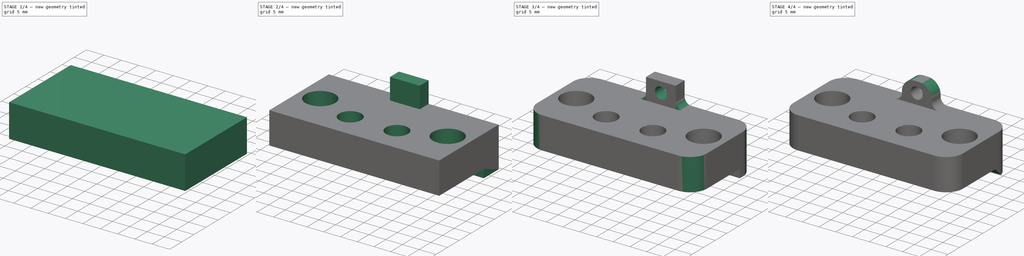
[diagram: build sequence overview — one tinted view per stage of 4, left to right]
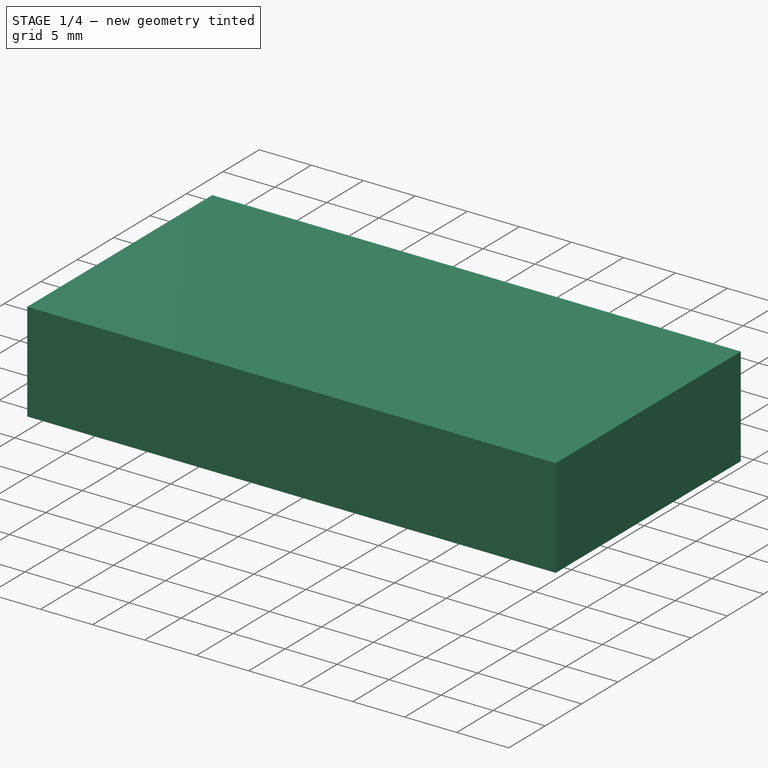
[diagram: stage 1 of 4 — iso view after this stage's code; geometry added in this stage tinted green]
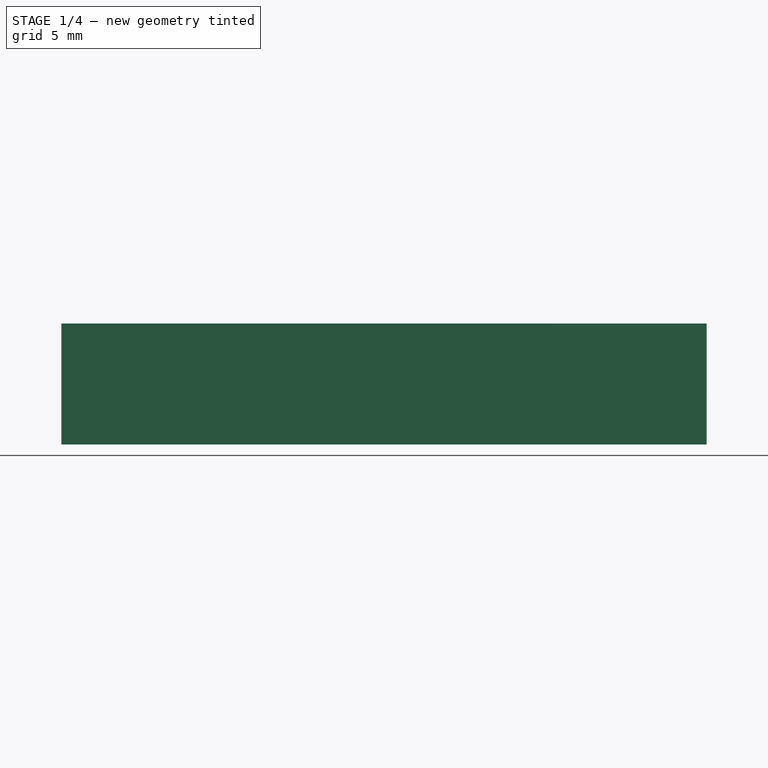
[diagram: stage 1 of 4 — front view after this stage's code; geometry added in this stage tinted green]
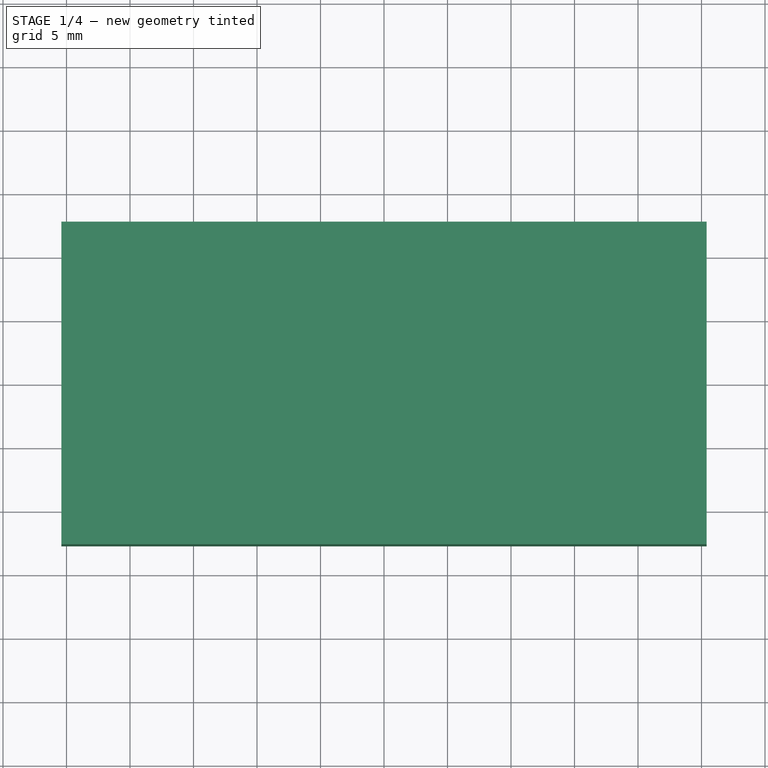
[diagram: stage 1 of 4 — top view after this stage's code; geometry added in this stage tinted green]
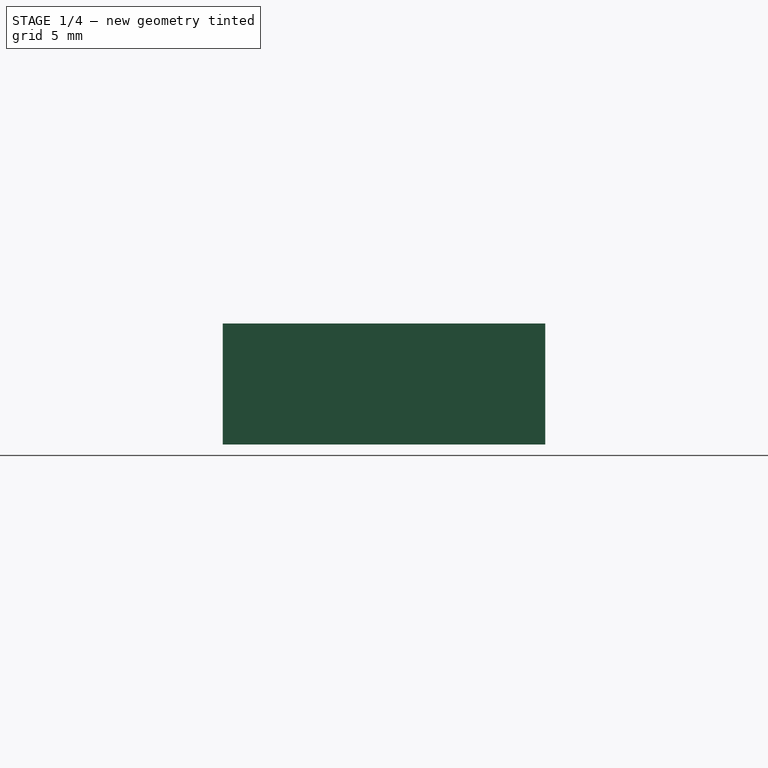
[diagram: stage 1 of 4 — right view after this stage's code; geometry added in this stage tinted green]
FCSTD DOCUMENT  (FreeCAD 1.0R39319 (Git))
Label: leak_detector
License: All rights reserved
LicenseURL: http://en.wikipedia.org/wiki/All_rights_reserved
objects: Sketcher::SketchObject×6, PartDesign::Pad×4, PartDesign::Fillet×3, PartDesign::Pocket×2, PartDesign::Chamfer×1, PartDesign::Body×1
note: 43 computed .brp shape members not serialized (recipe doc carries the construction recipe); baked Part::Feature solids carry a one-line shape summary decoded from their .brp

FEATURE [Sketcher::SketchObject] Sketch  label="base"
  ArcFitTolerance = 1e-06
  AttachmentSupport = -> [XY_Plane]
  FullyConstrained = true
  MakeInternals = false
  MapMode = 5
  sketch-geometry (14):
    g0: LineSegment StartX=-25.4 StartY=12.7 StartZ=0 EndX=-25.4 EndY=-12.7 EndZ=0
    g1: LineSegment StartX=-25.4 StartY=-12.7 StartZ=0 EndX=25.4 EndY=-12.7 EndZ=0
    g2: LineSegment StartX=25.4 StartY=-12.7 StartZ=0 EndX=25.4 EndY=12.7 EndZ=0
    g3: LineSegment StartX=25.4 StartY=12.7 StartZ=0 EndX=-25.4 EndY=12.7 EndZ=0
    g4: LineSegment StartX=3.81 StartY=-4.445 StartZ=0 EndX=3.81 EndY=-5.207 EndZ=0
    g5: LineSegment StartX=3.81 StartY=-5.207 StartZ=0 EndX=10.16 EndY=-5.207 EndZ=0
    g6: LineSegment StartX=10.16 StartY=-5.207 StartZ=0 EndX=10.16 EndY=-4.445 EndZ=0
    g7: LineSegment StartX=10.16 StartY=-4.445 StartZ=0 EndX=3.81 EndY=-4.445 EndZ=0
    g8: LineSegment StartX=-10.16 StartY=-4.445 StartZ=0 EndX=-10.16 EndY=-5.207 EndZ=0
    g9: LineSegment StartX=-10.16 StartY=-5.207 StartZ=0 EndX=-3.81 EndY=-5.207 EndZ=0
    g10: LineSegment StartX=-3.81 StartY=-5.207 StartZ=0 EndX=-3.81 EndY=-4.445 EndZ=0
    g11: LineSegment StartX=-3.81 StartY=-4.445 StartZ=0 EndX=-10.16 EndY=-4.445 EndZ=0
    g12: Circle CenterX=-19.05 CenterY=0 CenterZ=0 NormalX=0 NormalY=0 NormalZ=1 AngleXU=0 Radius=1.27
    g13: Circle CenterX=19.05 CenterY=0 CenterZ=0 NormalX=0 NormalY=0 NormalZ=1 AngleXU=0 Radius=1.27
  constraints (40):
    c: Coincident(g0,g1)
    c: Coincident(g1,g2)
    c: Coincident(g2,g3)
    c: Coincident(g3,g0)
    c: Vertical(g0)
    c: Vertical(g2)
    c: Horizontal(g1)
    c: Horizontal(g3)
    c: DistanceX(g3,g3) = 50.8
    c: Symmetric(g2,g0,g-1)
    c: DistanceY(g2,g2) = 25.4
    c: Coincident(g4,g5)
    c: Coincident(g5,g6)
    c: Coincident(g6,g7)
    c: Coincident(g7,g4)
    c: Vertical(g4)
    c: Vertical(g6)
    c: Horizontal(g5)
    c: Horizontal(g7)
    c: Distance(g6,g6) = 0.762
    c: DistanceX(g7,g7) = 6.35
    c: Coincident(g8,g9)
    c: Coincident(g9,g10)
    c: Coincident(g10,g11)
    c: Coincident(g11,g8)
    c: Vertical(g8)
    c: Vertical(g10)
    c: Horizontal(g9)
    c: Horizontal(g11)
    c: Distance(g10,g10) = 0.762
    c: DistanceX(g11,g11) = 6.35
    c: Symmetric(g10,g4,g-2)
    c: DistanceX(g10,g-1) = 3.81
    c: DistanceY(g10,g-1) = 4.445
    c: PointOnObject(g12,g-1)
    c: PointOnObject(g13,g-1)
    c: Diameter(g12) = 2.54
    c: Equal(g12,g13)
    c: DistanceX(g0,g12) = 6.35
    c: DistanceX(g13,g1) = 6.35
FEATURE [PartDesign::Pad] Pad  label="basePad"
  Direction = (0,0,1)
  Length = 1.905
  Length2 = 10
  Profile = -> Sketch
  ReferenceAxis = -> Sketch [N_Axis]
  Refine = true
  Suppressed = false
  Type = 0
FEATURE [Sketcher::SketchObject] Sketch001  label="top"
  ArcFitTolerance = 1e-06
  AttachmentSupport = -> [Pad]
  ExternalGeometry = -> [Pad]
  FullyConstrained = true
  MakeInternals = false
  MapMode = 5
  Placement = pos=(0,0,1.905) rot=(0,0,1;0rad)
  sketch-geometry (4):
    g0: LineSegment StartX=-25.4 StartY=12.7 StartZ=0 EndX=-25.4 EndY=-12.7 EndZ=0
    g1: LineSegment StartX=-25.4 StartY=-12.7 StartZ=0 EndX=25.4 EndY=-12.7 EndZ=0
    g2: LineSegment StartX=25.4 StartY=-12.7 StartZ=0 EndX=25.4 EndY=12.7 EndZ=0
    g3: LineSegment StartX=25.4 StartY=12.7 StartZ=0 EndX=-25.4 EndY=12.7 EndZ=0
  constraints (10):
    c: Coincident(g0,g1)
    c: Coincident(g1,g2)
    c: Coincident(g2,g3)
    c: Coincident(g3,g0)
    c: Vertical(g0)
    c: Vertical(g2)
    c: Horizontal(g1)
    c: Horizontal(g3)
    c: Coincident(g0,g-3)
    c: Coincident(g1,g-5)
FEATURE [PartDesign::Pad] Pad001  label="topPad"
  BaseFeature = -> Pad
  Direction = (0,0,1)
  Length = 7.62
  Length2 = 10
  Profile = -> Sketch001
  ReferenceAxis = -> Sketch001 [N_Axis]
  Refine = true
  Suppressed = false
  Type = 0
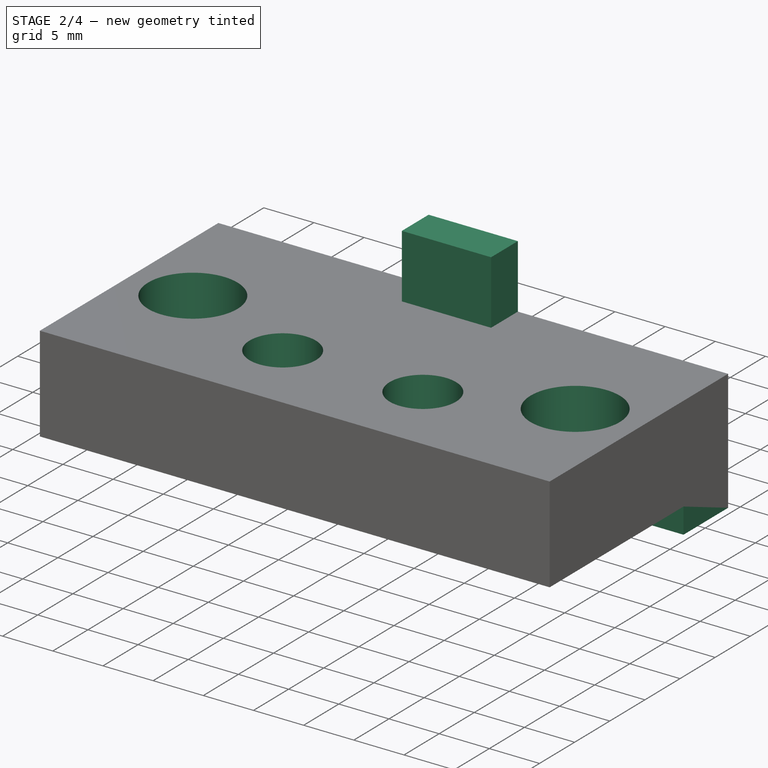
[diagram: stage 2 of 4 — iso view after this stage's code; geometry added in this stage tinted green]
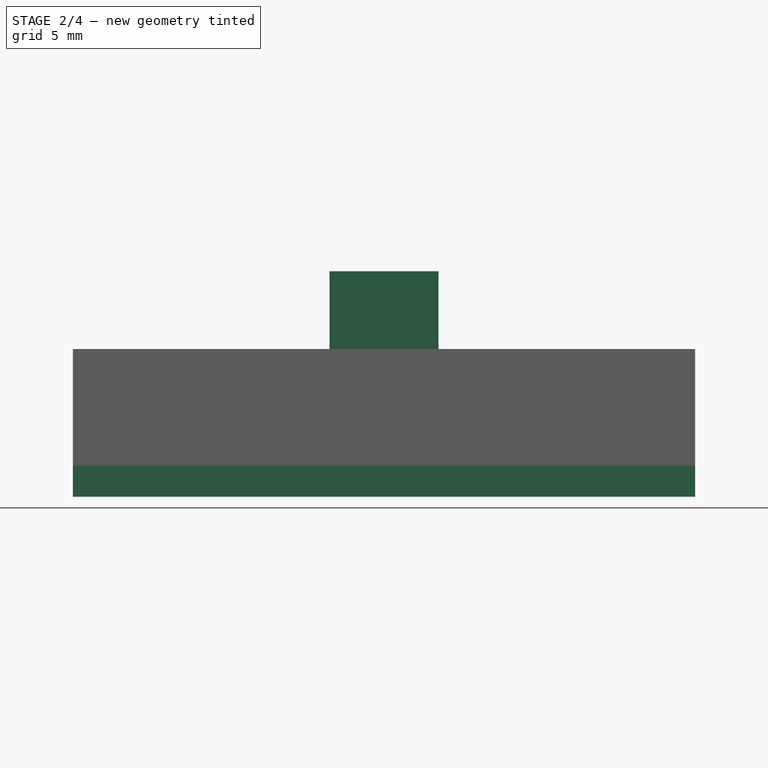
[diagram: stage 2 of 4 — front view after this stage's code; geometry added in this stage tinted green]
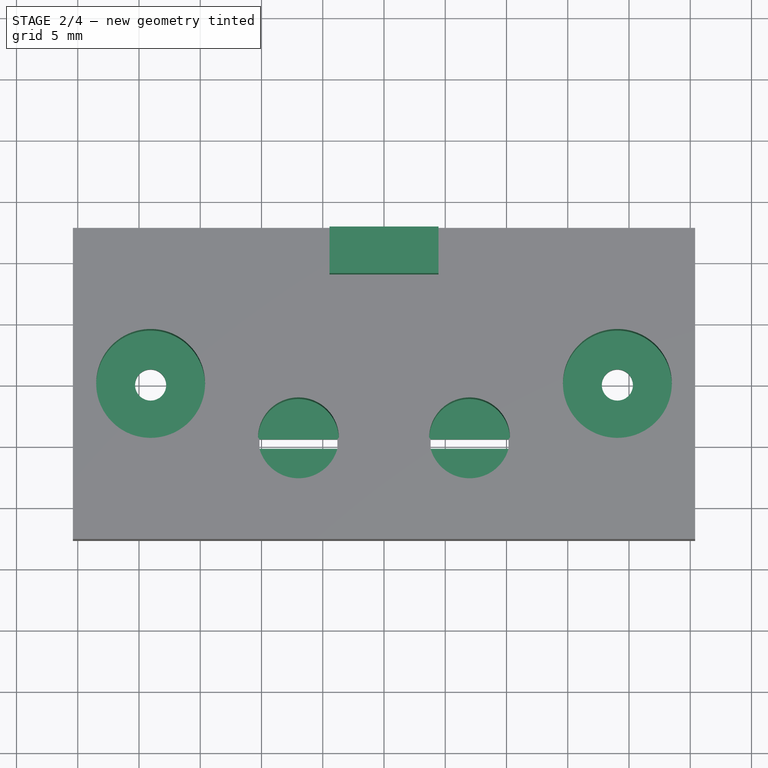
[diagram: stage 2 of 4 — top view after this stage's code; geometry added in this stage tinted green]
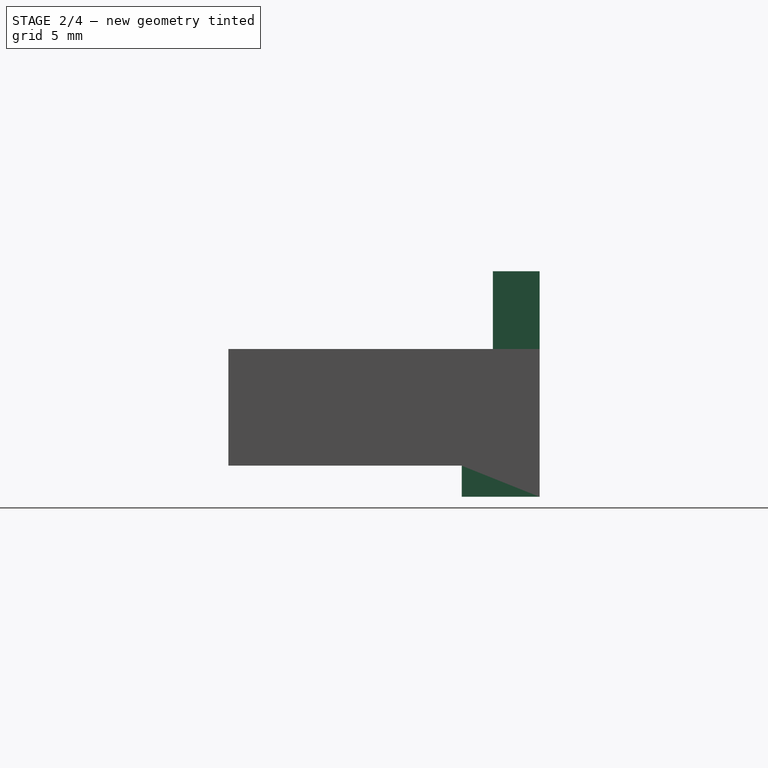
[diagram: stage 2 of 4 — right view after this stage's code; geometry added in this stage tinted green]
FEATURE [Sketcher::SketchObject] Sketch002  label="topHoles"
  ArcFitTolerance = 1e-06
  AttachmentSupport = -> [Pad001]
  ExternalGeometry = -> [Sketch,Sketch001]
  FullyConstrained = true
  MakeInternals = false
  MapMode = 5
  Placement = pos=(0,0,9.525) rot=(0,0,1;0rad)
  sketch-geometry (4):
    g0: Circle CenterX=-6.985 CenterY=-4.445 CenterZ=0 NormalX=0 NormalY=0 NormalZ=1 AngleXU=0 Radius=3.302
    g1: Circle CenterX=6.985 CenterY=-4.445 CenterZ=0 NormalX=0 NormalY=0 NormalZ=1 AngleXU=0 Radius=3.302
    g2: Circle CenterX=19.05 CenterY=0 CenterZ=0 NormalX=0 NormalY=0 NormalZ=1 AngleXU=0 Radius=4.445
    g3: Circle CenterX=-19.05 CenterY=0 CenterZ=0 NormalX=0 NormalY=0 NormalZ=1 AngleXU=0 Radius=4.445
  constraints (10):
    c: Diameter(g1) = 6.604
    c: Equal(g0,g1)
    c: Symmetric(g-4,g-3,g0)
    c: Symmetric(g-6,g-5,g1)
    c: PointOnObject(g2,g-1)
    c: PointOnObject(g3,g-1)
    c: Diameter(g3) = 8.89
    c: Equal(g3,g2)
    c: Vertical(g2,g-11)
    c: Vertical(g-12,g3)
FEATURE [PartDesign::Pocket] Pocket  label="topHolesPocket"
  BaseFeature = -> Pad001
  Direction = (0,0,-1)
  Length = 0
  Length2 = 5
  Profile = -> Sketch002
  ReferenceAxis = -> Sketch002 [N_Axis]
  Refine = true
  Suppressed = false
  Type = 3
  UpToFace = -> Pad [Face16]
FEATURE [Sketcher::SketchObject] Sketch003  label="feet"
  ArcFitTolerance = 1e-06
  AttachmentSupport = -> [Pocket]
  ExternalGeometry = -> [Sketch]
  FullyConstrained = true
  MakeInternals = false
  MapMode = 5
  Placement = pos=(0,0,0) rot=(1,0,0;3.14159rad)
  sketch-geometry (4):
    g0: LineSegment StartX=-25.4 StartY=-12.7 StartZ=0 EndX=25.4 EndY=-12.7 EndZ=0
    g1: LineSegment StartX=25.4 StartY=-12.7 StartZ=0 EndX=25.4 EndY=-6.35 EndZ=0
    g2: LineSegment StartX=25.4 StartY=-6.35 StartZ=0 EndX=-25.4 EndY=-6.35 EndZ=0
    g3: LineSegment StartX=-25.4 StartY=-6.35 StartZ=0 EndX=-25.4 EndY=-12.7 EndZ=0
  constraints (11):
    c: Coincident(g0,g1)
    c: Coincident(g1,g2)
    c: Coincident(g2,g3)
    c: Coincident(g3,g0)
    c: Horizontal(g0)
    c: Horizontal(g2)
    c: Vertical(g1)
    c: Vertical(g3)
    c: Coincident(g0,g-3)
    c: Vertical(g0,g-4)
    c: DistanceY(g1,g1) = 6.35
FEATURE [PartDesign::Pad] Pad002  label="feePad"
  BaseFeature = -> Pocket
  Direction = (0,0,-1)
  Length = 2.54
  Length2 = 10
  Profile = -> Sketch003
  ReferenceAxis = -> Sketch003 [N_Axis]
  Refine = true
  Suppressed = false
  Type = 0
FEATURE [Sketcher::SketchObject] Sketch004  label="wireHolder"
  ArcFitTolerance = 1e-06
  AttachmentSupport = -> [Pad002]
  ExternalGeometry = -> [Pad002]
  FullyConstrained = true
  MakeInternals = false
  MapMode = 5
  Placement = pos=(0,0,9.525) rot=(0,0,1;0rad)
  sketch-geometry (4):
    g0: LineSegment StartX=-4.445 StartY=12.7 StartZ=0 EndX=-4.445 EndY=8.89 EndZ=0
    g1: LineSegment StartX=-4.445 StartY=8.89 StartZ=0 EndX=4.445 EndY=8.89 EndZ=0
    g2: LineSegment StartX=4.445 StartY=8.89 StartZ=0 EndX=4.445 EndY=12.7 EndZ=0
    g3: LineSegment StartX=4.445 StartY=12.7 StartZ=0 EndX=-4.445 EndY=12.7 EndZ=0
  constraints (11):
    c: Coincident(g0,g1)
    c: Coincident(g1,g2)
    c: Coincident(g2,g3)
    c: Coincident(g3,g0)
    c: Vertical(g0)
    c: Vertical(g2)
    c: Horizontal(g1)
    c: PointOnObject(g0,g-3)
    c: Symmetric(g2,g0,g-2)
    c: DistanceY(g0,g0) = 3.81
    c: DistanceX(g3,g3) = 8.89
FEATURE [PartDesign::Pad] Pad003  label="wireHolderPad"
  BaseFeature = -> Pad002
  Direction = (0,0,1)
  Length = 6.35
  Length2 = 10
  Profile = -> Sketch004
  ReferenceAxis = -> Sketch004 [N_Axis]
  Refine = true
  Suppressed = false
  Type = 0
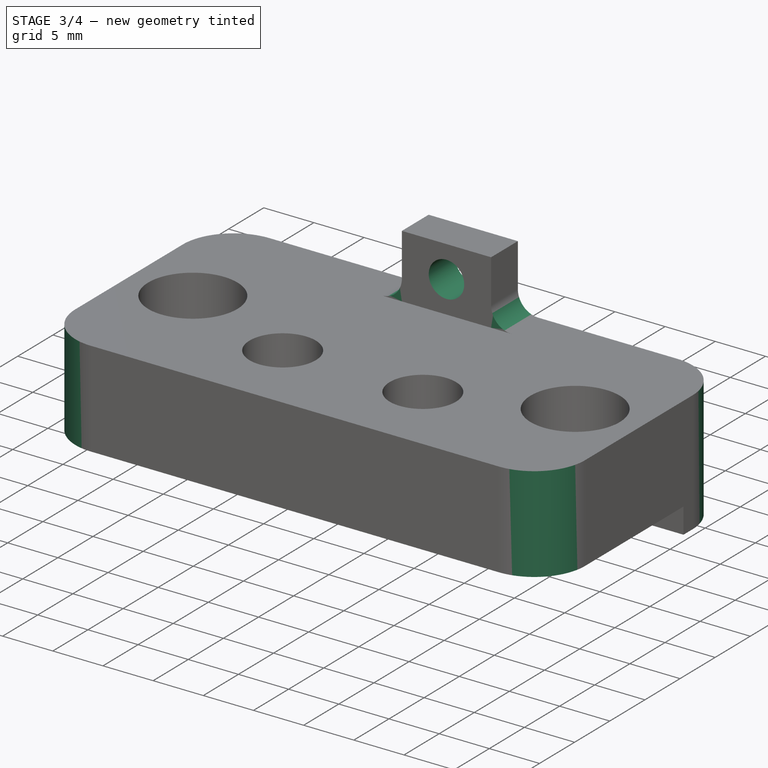
[diagram: stage 3 of 4 — iso view after this stage's code; geometry added in this stage tinted green]
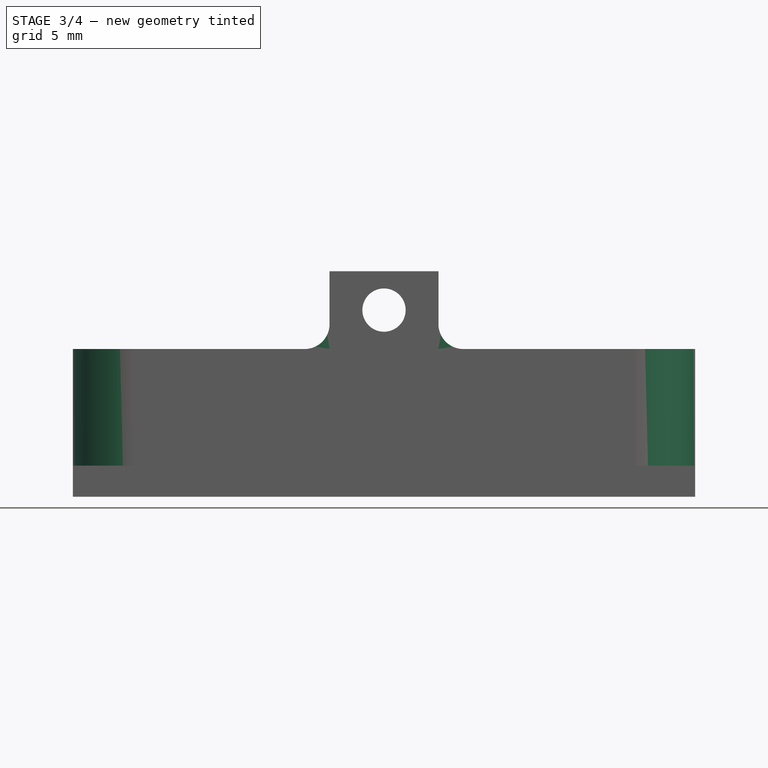
[diagram: stage 3 of 4 — front view after this stage's code; geometry added in this stage tinted green]
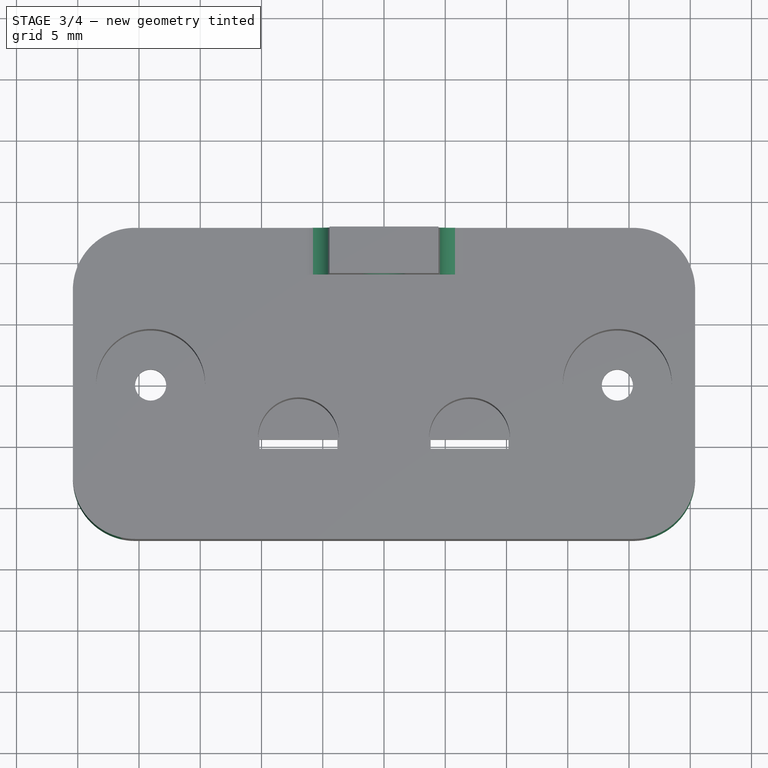
[diagram: stage 3 of 4 — top view after this stage's code; geometry added in this stage tinted green]
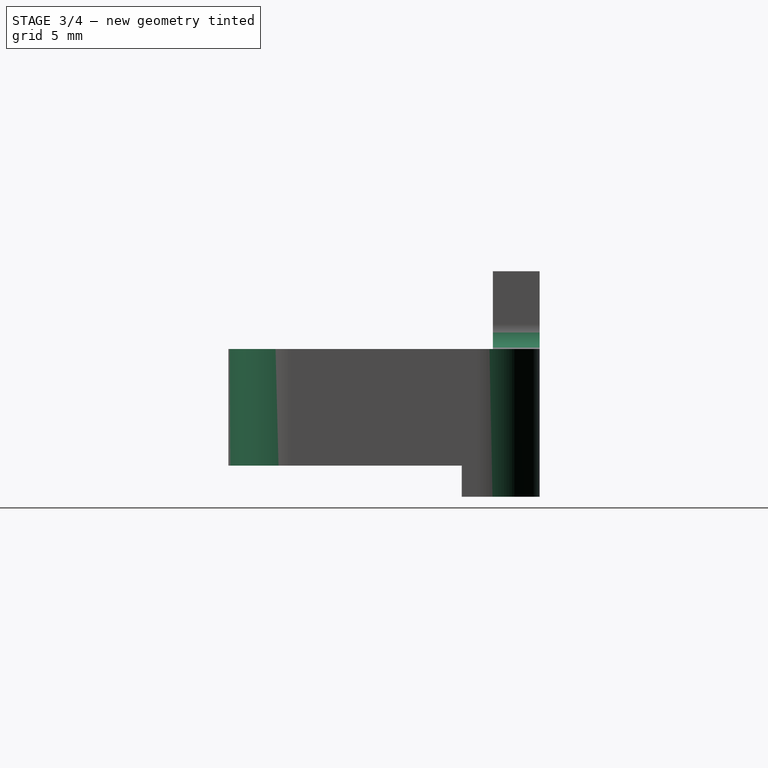
[diagram: stage 3 of 4 — right view after this stage's code; geometry added in this stage tinted green]
FEATURE [Sketcher::SketchObject] Sketch005  label="wireHole"
  ArcFitTolerance = 1e-06
  AttachmentSupport = -> [Pad003]
  ExternalGeometry = -> [Pad003]
  FullyConstrained = true
  MakeInternals = false
  MapMode = 5
  Placement = pos=(0,8.89,0) rot=(1,0,0;1.5708rad)
  sketch-geometry (1):
    g0: Circle CenterX=4e-16 CenterY=12.7 CenterZ=0 NormalX=0 NormalY=0 NormalZ=1 AngleXU=0 Radius=1.7653
  constraints (2):
    c: Diameter(g0) = 3.5306
    c: Symmetric(g-6,g-5,g0)
FEATURE [PartDesign::Pocket] Pocket001  label="wireHolePocket"
  BaseFeature = -> Pad003
  Direction = (0,1,-2e-16)
  Length = 5.08
  Length2 = 5
  Profile = -> Sketch005 [Edge1]
  ReferenceAxis = -> Sketch005 [N_Axis]
  Refine = true
  Suppressed = false
  Type = 0
FEATURE [PartDesign::Fillet] Fillet
  Base = -> Pocket001 [Edge20,Edge25,Edge18,Edge22]
  BaseFeature = -> Pocket001
  Radius = 5.08
  Refine = true
  SupportTransform = false
  Suppressed = false
  UseAllEdges = false
FEATURE [PartDesign::Fillet] Fillet001
  Base = -> Fillet [Edge57,Edge55]
  BaseFeature = -> Fillet
  Radius = 2.032
  Refine = true
  SupportTransform = false
  Suppressed = false
  UseAllEdges = false
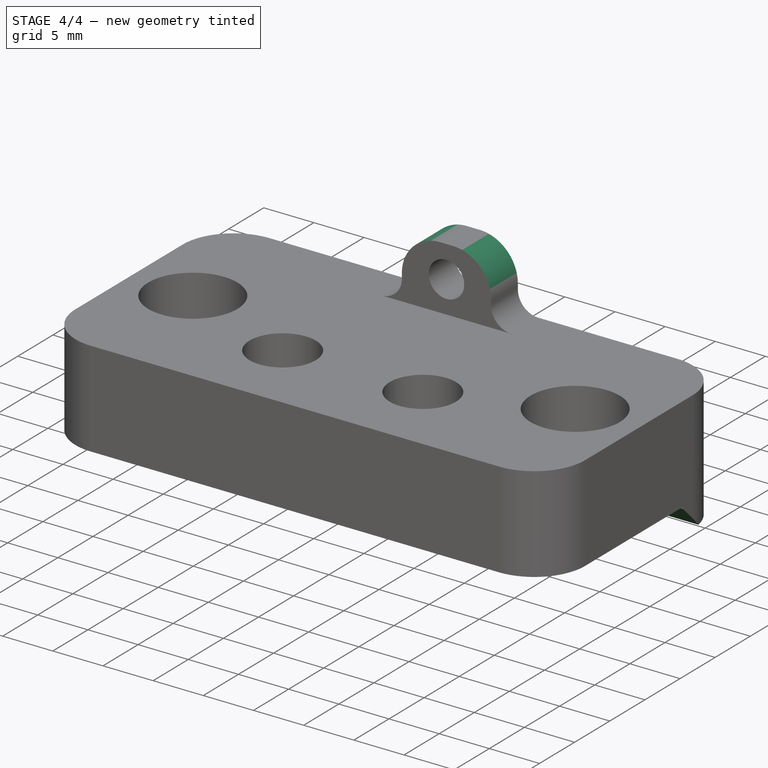
[diagram: stage 4 of 4 — iso view after this stage's code; geometry added in this stage tinted green]
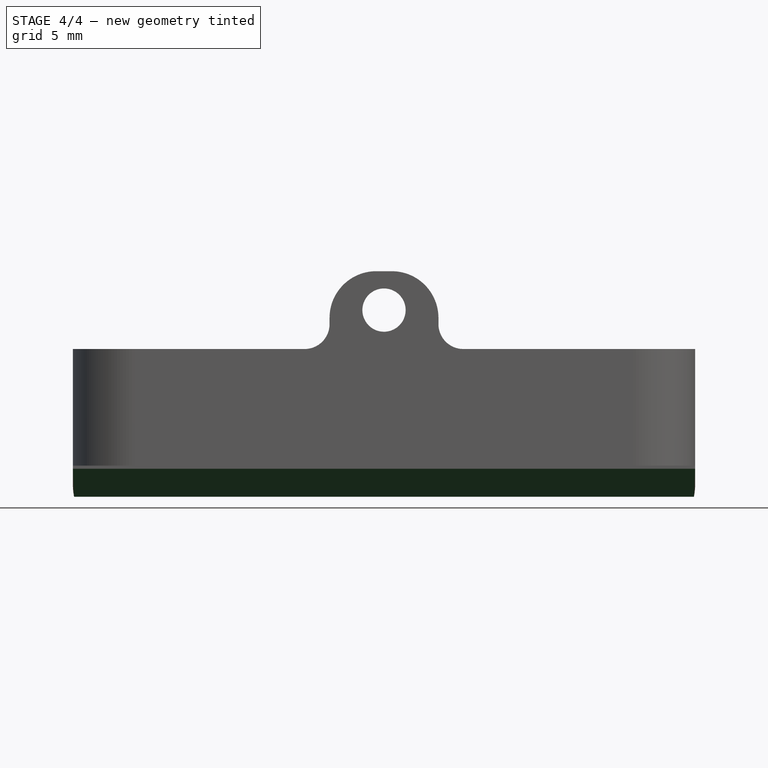
[diagram: stage 4 of 4 — front view after this stage's code; geometry added in this stage tinted green]
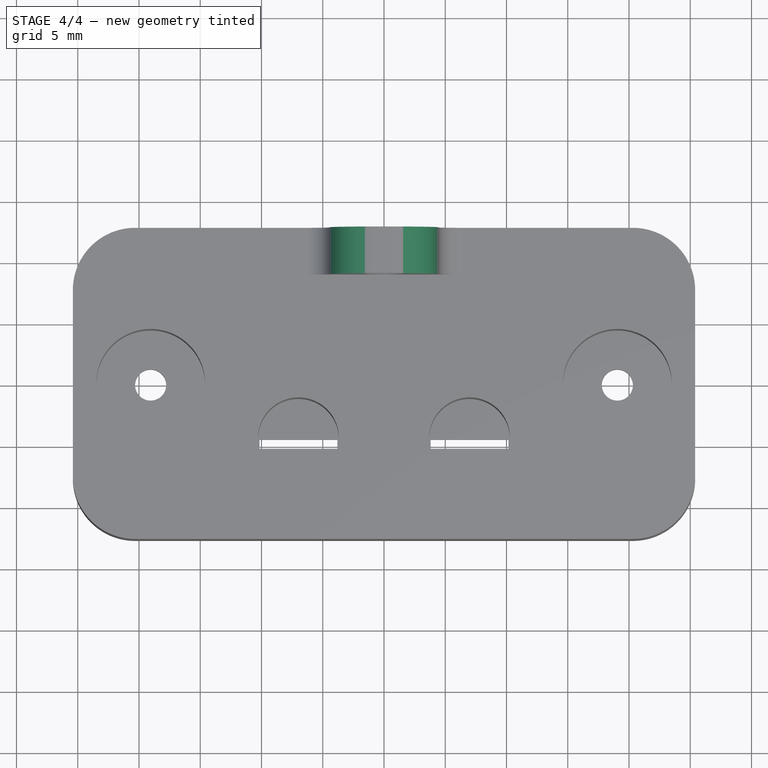
[diagram: stage 4 of 4 — top view after this stage's code; geometry added in this stage tinted green]
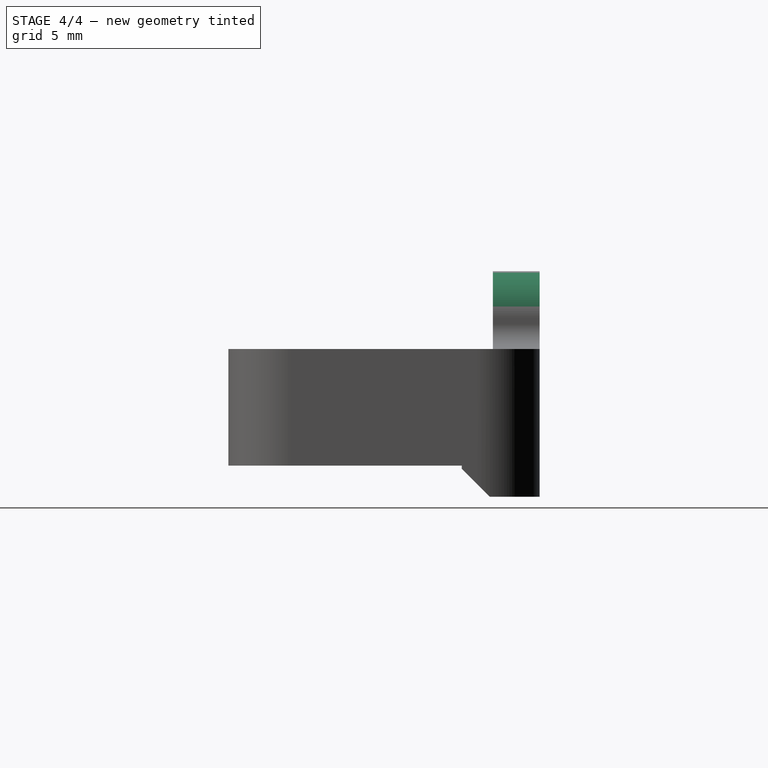
[diagram: stage 4 of 4 — right view after this stage's code; geometry added in this stage tinted green]
FEATURE [PartDesign::Fillet] Fillet002  label="wireHoleFillet"
  Base = -> Fillet001 [Edge61,Edge63]
  BaseFeature = -> Fillet001
  Radius = 3.81
  Refine = true
  SupportTransform = false
  Suppressed = false
  UseAllEdges = false
FEATURE [PartDesign::Chamfer] Chamfer
  Angle = 45
  Base = -> Fillet002 [Edge47]
  BaseFeature = -> Fillet002
  ChamferType = 0
  FlipDirection = false
  Refine = true
  Size = 2.286
  Size2 = 1
  SupportTransform = false
  Suppressed = false
  UseAllEdges = false
FEATURE [PartDesign::Body] Body
  AllowCompound = false
  Group = -> [Sketch,Pad,Sketch001,Pad001,Sketch002,Pocket,Sketch003,Pad002,Sketch004,Pad003,Sketch005,Pocket001,Fillet,Fillet001,Fillet002,Chamfer]
  Origin = -> Origin
  Tip = -> Chamfer
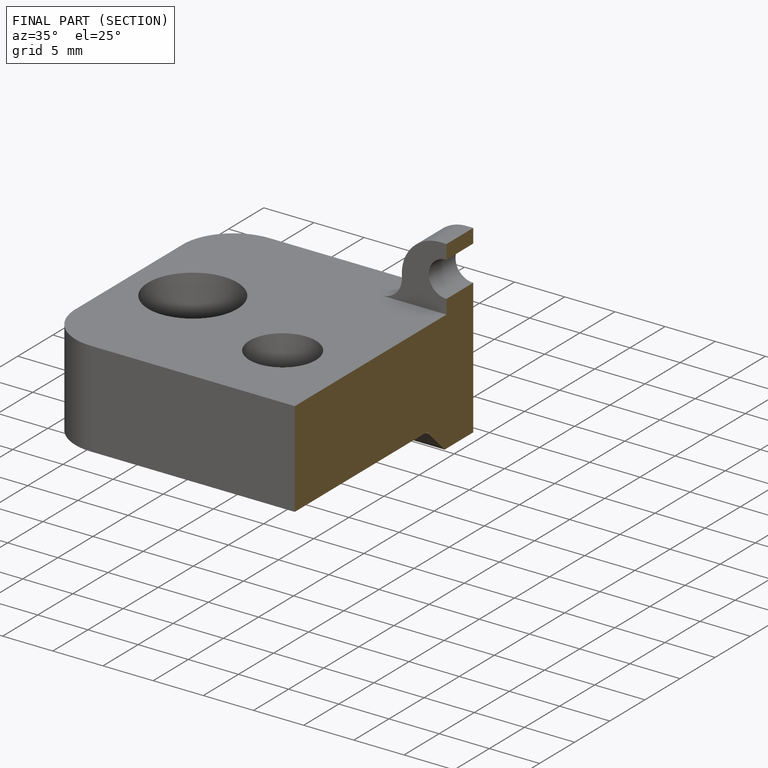
[diagram: finished part — half-section view (interior)]
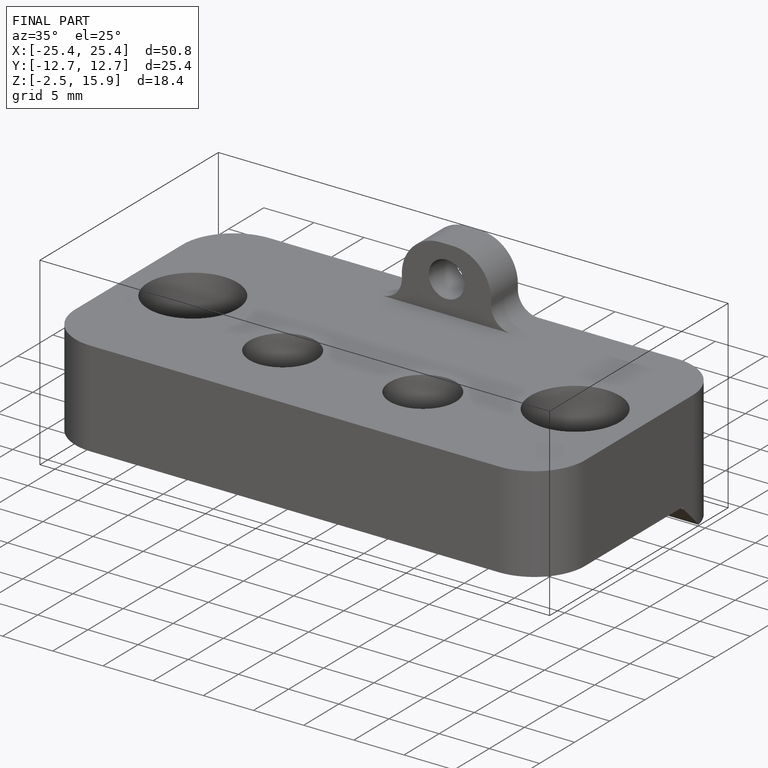
[diagram: finished part — iso view with bounding-box wireframe]
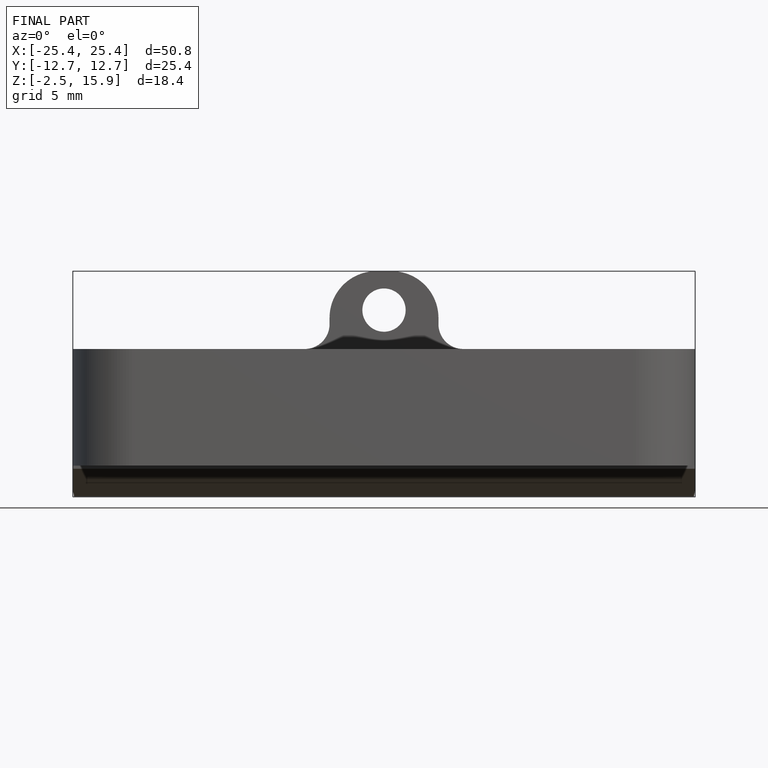
[diagram: finished part — front view with bounding-box wireframe]
